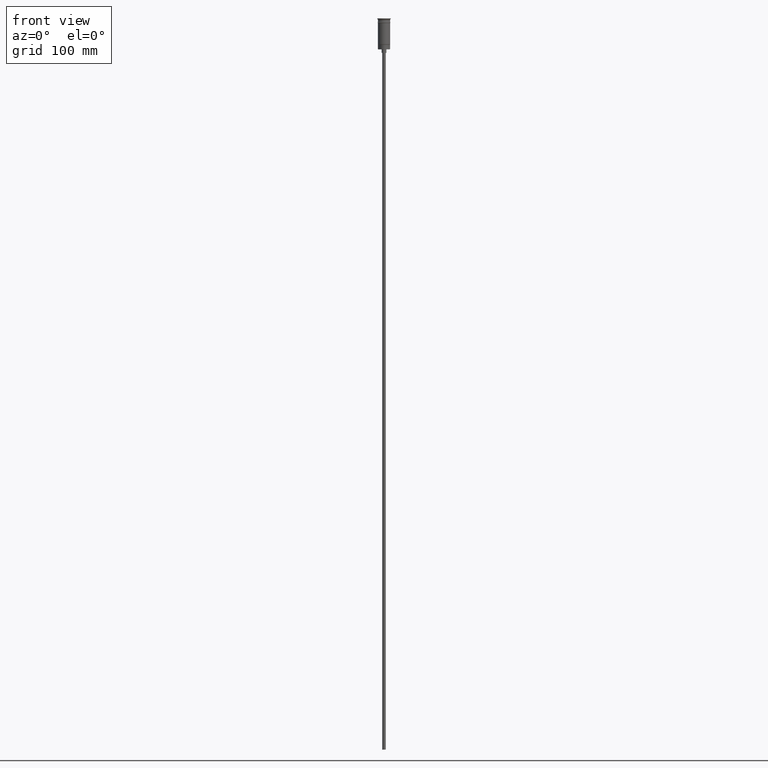
[diagram: clean part render]
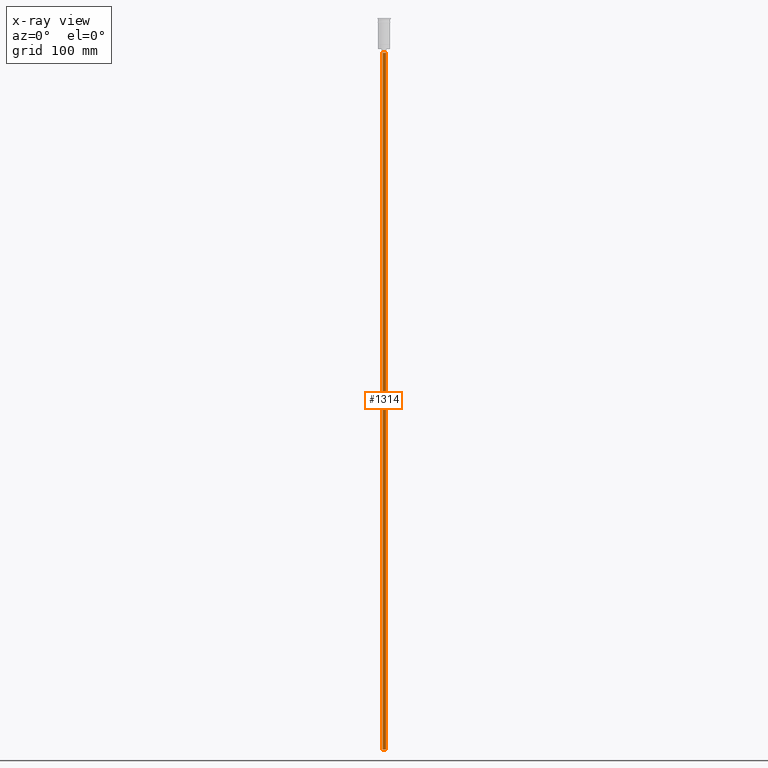
[diagram: x-ray — body ghosted, one internal face saturated and labeled with its STEP entity id]
A machine part, front view, then the same camera in x-ray: the body is ghosted and one INTERNAL B-rep face — a face not visible from any outside direction — is saturated and labeled: STEP entity #1314.
In plain terms, the highlighted cylindrical surface (edge-blend (fillet) strip) has radius 1.5 mm, axis along (-0, -0, 1).
Its self-contained STEP definition (entity closure, byte-faithful):
#10 = DIRECTION ( 'NONE',  ( -0.000000000000000000, -0.000000000000000000, 1.000000000000000000 ) ) ;
#71 = ORIENTED_EDGE ( 'NONE', *, *, #1515, .F. ) ;
#139 = CIRCLE ( 'NONE', #629, 1.500000000000000222 ) ;
#146 = VECTOR ( 'NONE', #10, 1000.000000000000000 ) ;
#150 = ORIENTED_EDGE ( 'NONE', *, *, #1419, .T. ) ;
#198 = DIRECTION ( 'NONE',  ( 0.000000000000000000, 0.000000000000000000, -1.000000000000000000 ) ) ;
#207 = LINE ( 'NONE', #835, #505 ) ;
#208 = DIRECTION ( 'NONE',  ( -1.000000000000000000, 0.000000000000000000, 0.000000000000000000 ) ) ;
#237 = FACE_OUTER_BOUND ( 'NONE', #331, .T. ) ;
#312 = VERTEX_POINT ( 'NONE', #458 ) ;
#331 = EDGE_LOOP ( 'NONE', ( #864, #150, #775, #71 ) ) ;
#458 = CARTESIAN_POINT ( 'NONE',  ( -1.500000000000000222, 1.836970198721030181E-16, -626.5000000000000000 ) ) ;
#503 = AXIS2_PLACEMENT_3D ( 'NONE', #1216, #1596, #208 ) ;
#505 = VECTOR ( 'NONE', #699, 1000.000000000000000 ) ;
#549 = VERTEX_POINT ( 'NONE', #1363 ) ;
#629 = AXIS2_PLACEMENT_3D ( 'NONE', #1544, #198, #926 ) ;
#699 = DIRECTION ( 'NONE',  ( -0.000000000000000000, -0.000000000000000000, 1.000000000000000000 ) ) ;
#735 = DIRECTION ( 'NONE',  ( 1.000000000000000000, 0.000000000000000000, 0.000000000000000000 ) ) ;
#748 = VERTEX_POINT ( 'NONE', #1170 ) ;
#775 = ORIENTED_EDGE ( 'NONE', *, *, #927, .T. ) ;
#787 = CIRCLE ( 'NONE', #503, 1.500000000000000222 ) ;
#835 = CARTESIAN_POINT ( 'NONE',  ( -1.500000000000000222, 1.836970198721030181E-16, -626.5000000000000000 ) ) ;
#860 = CYLINDRICAL_SURFACE ( 'NONE', #1132, 1.500000000000000222 ) ;
#864 = ORIENTED_EDGE ( 'NONE', *, *, #1174, .F. ) ;
#867 = CARTESIAN_POINT ( 'NONE',  ( 1.500000000000000222, 0.000000000000000000, -626.5000000000000000 ) ) ;
#926 = DIRECTION ( 'NONE',  ( -1.000000000000000000, 0.000000000000000000, 0.000000000000000000 ) ) ;
#927 = EDGE_CURVE ( 'NONE', #549, #1112, #787, .T. ) ;
#1003 = CARTESIAN_POINT ( 'NONE',  ( 1.500000000000000222, 0.000000000000000000, -29.50000000000000000 ) ) ;
#1112 = VERTEX_POINT ( 'NONE', #1003 ) ;
#1132 = AXIS2_PLACEMENT_3D ( 'NONE', #1360, #1477, #735 ) ;
#1170 = CARTESIAN_POINT ( 'NONE',  ( 1.500000000000000222, 0.000000000000000000, -626.5000000000000000 ) ) ;
#1174 = EDGE_CURVE ( 'NONE', #312, #748, #139, .T. ) ;
#1216 = CARTESIAN_POINT ( 'NONE',  ( 0.000000000000000000, 0.000000000000000000, -29.50000000000000000 ) ) ;
#1314 = ADVANCED_FACE ( 'NONE', ( #237 ), #860, .T. ) ;
#1360 = CARTESIAN_POINT ( 'NONE',  ( 0.000000000000000000, 0.000000000000000000, -626.5000000000000000 ) ) ;
#1363 = CARTESIAN_POINT ( 'NONE',  ( -1.500000000000000222, 1.836970198721030181E-16, -29.50000000000000000 ) ) ;
#1387 = LINE ( 'NONE', #867, #146 ) ;
#1419 = EDGE_CURVE ( 'NONE', #312, #549, #207, .T. ) ;
#1477 = DIRECTION ( 'NONE',  ( -0.000000000000000000, -0.000000000000000000, 1.000000000000000000 ) ) ;
#1515 = EDGE_CURVE ( 'NONE', #748, #1112, #1387, .T. ) ;
#1544 = CARTESIAN_POINT ( 'NONE',  ( 0.000000000000000000, 0.000000000000000000, -626.5000000000000000 ) ) ;
#1596 = DIRECTION ( 'NONE',  ( 0.000000000000000000, 0.000000000000000000, -1.000000000000000000 ) ) ;